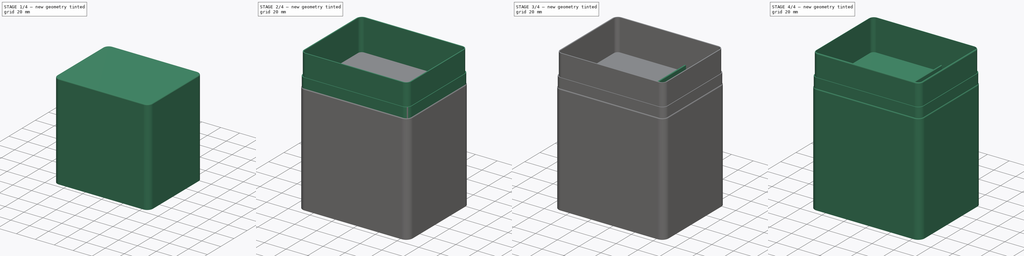
[diagram: build sequence overview — one tinted view per stage of 4, left to right]
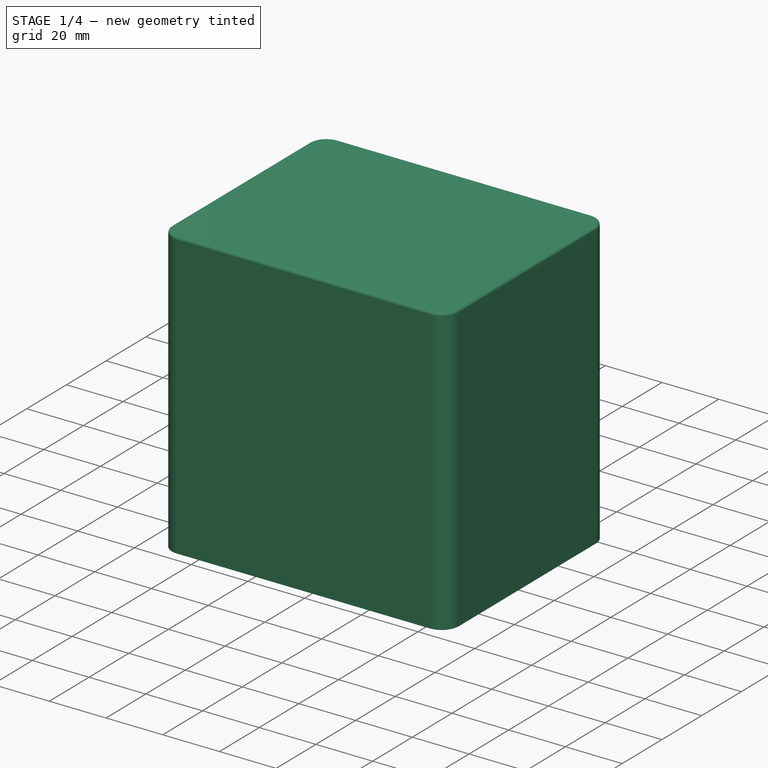
[diagram: stage 1 of 4 — iso view after this stage's code; geometry added in this stage tinted green]
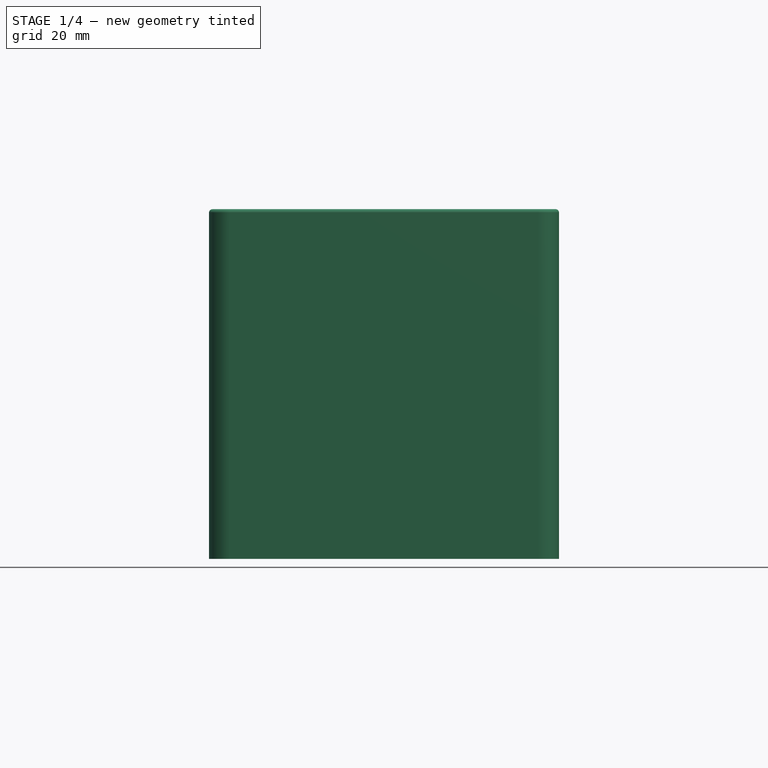
[diagram: stage 1 of 4 — front view after this stage's code; geometry added in this stage tinted green]
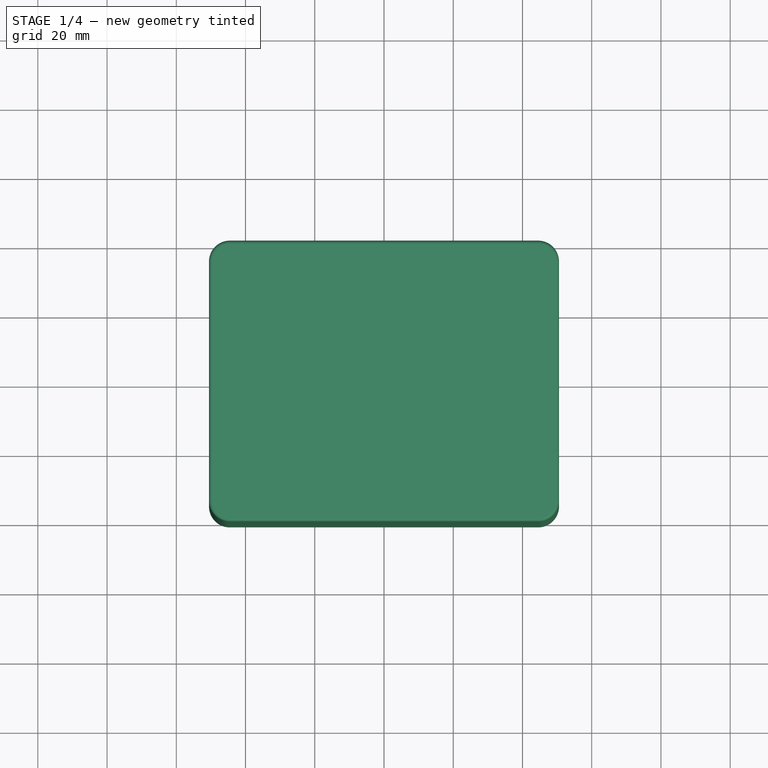
[diagram: stage 1 of 4 — top view after this stage's code; geometry added in this stage tinted green]
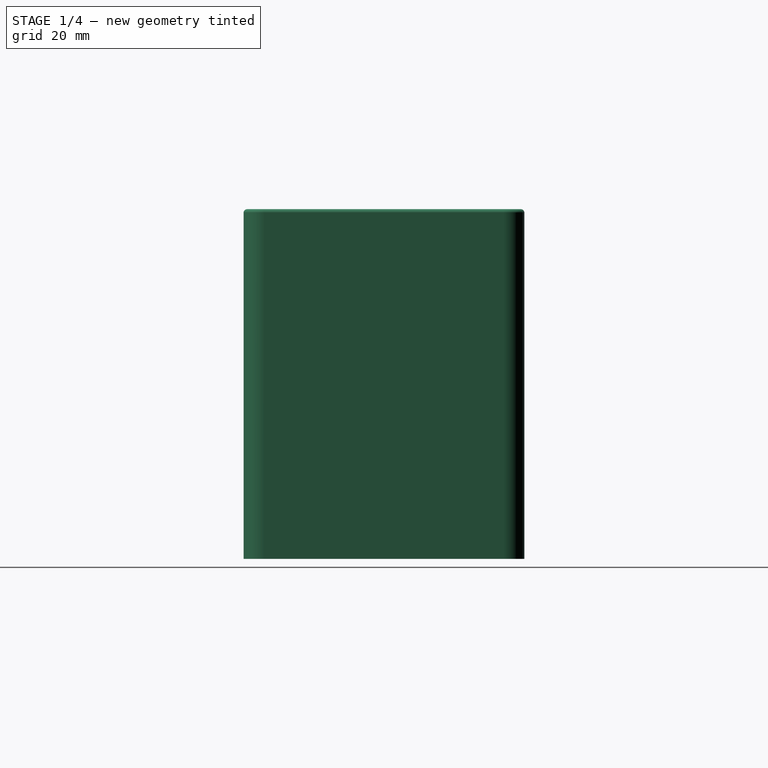
[diagram: stage 1 of 4 — right view after this stage's code; geometry added in this stage tinted green]
FCSTD DOCUMENT  (FreeCAD 0.21R33771 (Git))
Label: 理发套装收纳盒
License: All rights reserved
LicenseURL: http://en.wikipedia.org/wiki/All_rights_reserved
objects: Sketcher::SketchObject×5, PartDesign::Pad×4, PartDesign::Fillet×4, PartDesign::Thickness×2, PartDesign::Body×2, App::Part×2, PartDesign::Pocket×1
note: 29 computed .brp shape members not serialized (recipe doc carries the construction recipe); baked Part::Feature solids carry a one-line shape summary decoded from their .brp

FEATURE [PartDesign::Body] Body  label="实体"
  Group = -> [Sketch,Pad,Thickness,Sketch006,Pocket,Sketch007,Pad004,Sketch008,Pad005,Fillet,Fillet001,Fillet002]
  Origin = -> Origin
  Tip = -> Fillet002
FEATURE [App::Part] Part  label="盒体"
  Group = -> [Body]
  Origin = -> Origin001
FEATURE [Sketcher::SketchObject] Sketch009
  FullyConstrained = true
  MapMode = 5
  Support = -> [XY_Plane003]
  sketch-geometry (12):
    g0: LineSegment StartX=-44.55 StartY=39.55 StartZ=0 EndX=44.55 EndY=39.55 EndZ=0
    g1: LineSegment StartX=49.55 StartY=34.55 StartZ=0 EndX=49.55 EndY=-34.55 EndZ=0
    g2: LineSegment StartX=44.55 StartY=-39.55 StartZ=0 EndX=-44.55 EndY=-39.55 EndZ=0
    g3: LineSegment StartX=-49.55 StartY=-34.55 StartZ=0 EndX=-49.55 EndY=34.55 EndZ=0
    g4: ArcOfCircle CenterX=-44.55 CenterY=-34.55 CenterZ=0 NormalX=0 NormalY=0 NormalZ=1 AngleXU=0 Radius=5 StartAngle=3.14159 EndAngle=4.71239
    g5: GeomPoint X=-49.55 Y=-39.55 Z=0
    g6: ArcOfCircle CenterX=44.55 CenterY=-34.55 CenterZ=0 NormalX=0 NormalY=0 NormalZ=1 AngleXU=0 Radius=5 StartAngle=4.71239 EndAngle=6.28319
    g7: GeomPoint X=49.55 Y=-39.55 Z=0
    g8: ArcOfCircle CenterX=44.55 CenterY=34.55 CenterZ=0 NormalX=0 NormalY=0 NormalZ=1 AngleXU=0 Radius=5 StartAngle=3e-16 EndAngle=1.5708
    g9: GeomPoint X=49.55 Y=39.55 Z=0
    g10: ArcOfCircle CenterX=-44.55 CenterY=34.55 CenterZ=0 NormalX=0 NormalY=0 NormalZ=1 AngleXU=0 Radius=5 StartAngle=1.5708 EndAngle=3.14159
    g11: GeomPoint X=-49.55 Y=39.55 Z=0
  constraints (27):
    c: Horizontal(g0)
    c: Horizontal(g2)
    c: Vertical(g1)
    c: Vertical(g3)
    c: PointOnObject(g5,g2)
    c: PointOnObject(g5,g3)
    c: Tangent(g2,g4) = 1.5708
    c: Tangent(g3,g4) = 1.5708
    c: PointOnObject(g7,g1)
    c: PointOnObject(g7,g2)
    c: Tangent(g1,g6) = 1.5708
    c: Tangent(g2,g6) = 1.5708
    c: PointOnObject(g9,g0)
    c: PointOnObject(g9,g1)
    c: Tangent(g0,g8) = 1.5708
    c: Tangent(g1,g8) = 1.5708
    c: PointOnObject(g11,g0)
    c: PointOnObject(g11,g3)
    c: Tangent(g0,g10) = 1.5708
    c: Tangent(g3,g10) = 1.5708
    c: Radius(g10) = 5
    c: Radius(g8) = 5
    c: Radius(g4) = 5
    c: Radius(g6) = 5
    c: Distance(g9,g11) = 99.1
    c: Distance(g5,g11) = 79.1
    c: Symmetric(g5,g9,g-1)
FEATURE [PartDesign::Pad] Pad006
  Direction = (0,0,1)
  Length = 100
  Length2 = 10
  Profile = -> Sketch009
  ReferenceAxis = -> Sketch009 [N_Axis]
  Type = 0
FEATURE [PartDesign::Thickness] Thickness001
  Base = -> Pad006 [Face9]
  BaseFeature = -> Pad006
  Intersection = false
  Join = 0
  Mode = 0
  SupportTransform = false
  Value = 1
FEATURE [PartDesign::Fillet] Fillet003
  Base = -> Thickness001 [Edge15]
  BaseFeature = -> Thickness001
  Radius = 0.9
  SupportTransform = false
  UseAllEdges = false
FEATURE [PartDesign::Body] Body001  label="实体001"
  Group = -> [Sketch009,Pad006,Thickness001,Fillet003]
  Origin = -> Origin003
  Placement = pos=(0,0,221) rot=(0,0,1;0rad)
  Tip = -> Fillet003
FEATURE [App::Part] Part001  label="盒盖"
  Group = -> [Body001]
  Origin = -> Origin002
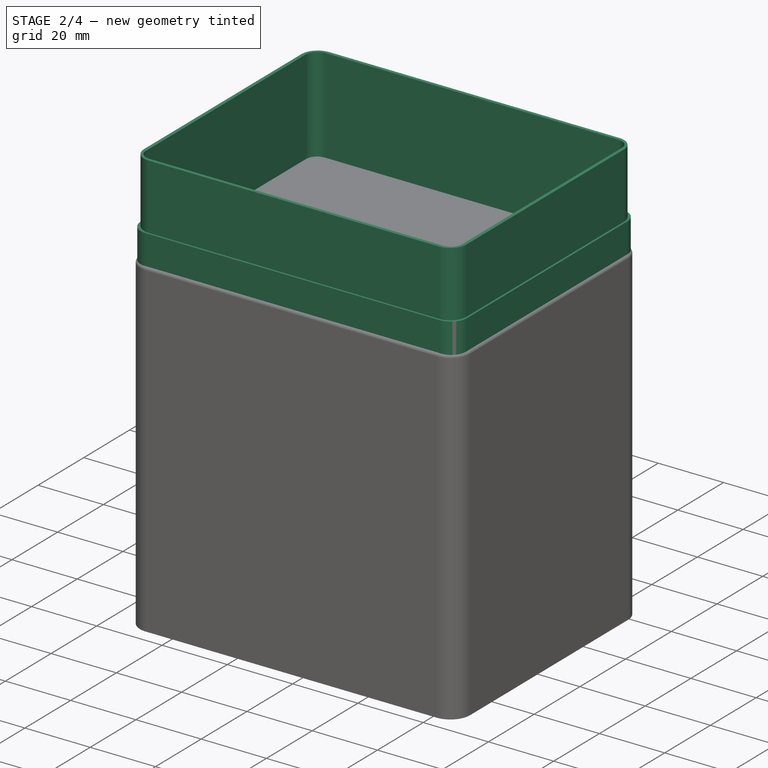
[diagram: stage 2 of 4 — iso view after this stage's code; geometry added in this stage tinted green]
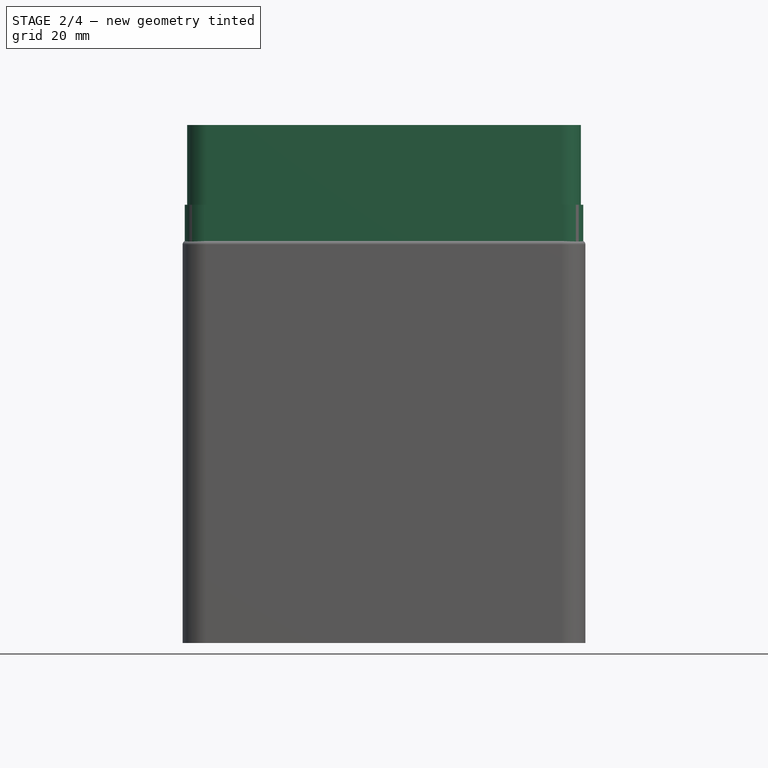
[diagram: stage 2 of 4 — front view after this stage's code; geometry added in this stage tinted green]
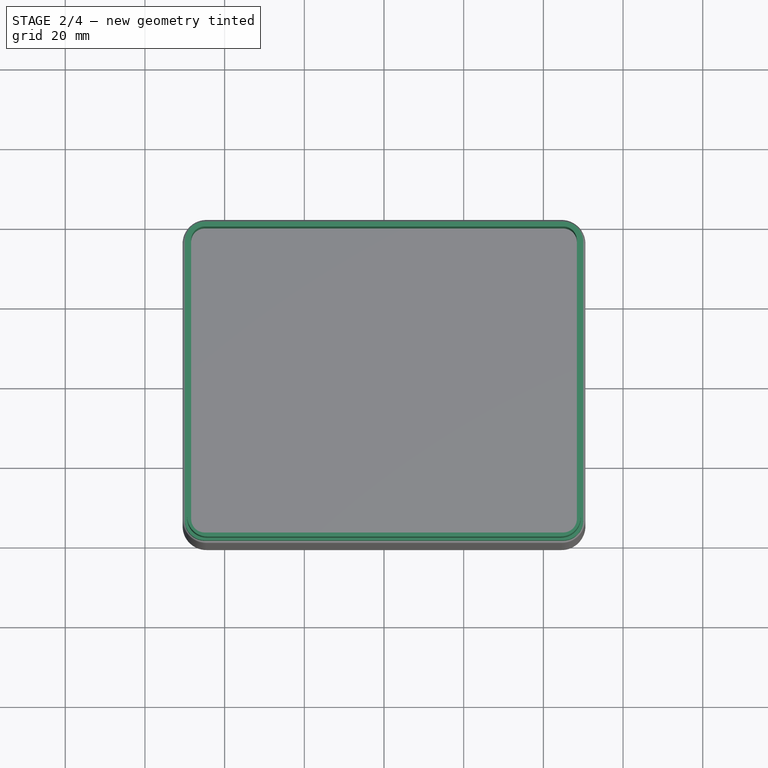
[diagram: stage 2 of 4 — top view after this stage's code; geometry added in this stage tinted green]
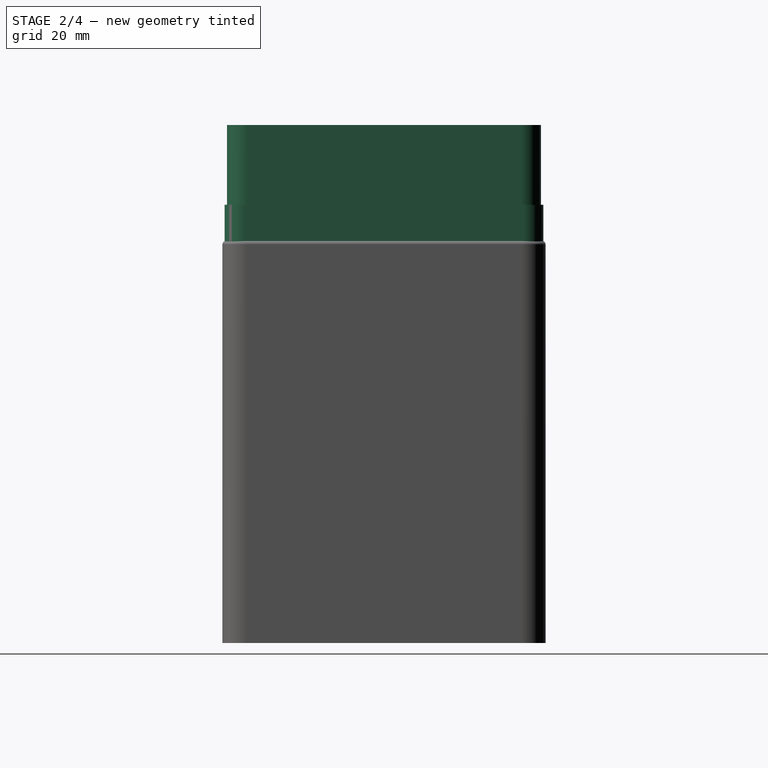
[diagram: stage 2 of 4 — right view after this stage's code; geometry added in this stage tinted green]
FEATURE [Sketcher::SketchObject] Sketch
  FullyConstrained = true
  MapMode = 5
  Support = -> [XY_Plane]
  sketch-geometry (12):
    g0: LineSegment StartX=-45 StartY=40 StartZ=0 EndX=45 EndY=40 EndZ=0
    g1: LineSegment StartX=50 StartY=35 StartZ=0 EndX=50 EndY=-35 EndZ=0
    g2: LineSegment StartX=45 StartY=-40 StartZ=0 EndX=-45 EndY=-40 EndZ=0
    g3: LineSegment StartX=-50 StartY=-35 StartZ=0 EndX=-50 EndY=35 EndZ=0
    g4: ArcOfCircle CenterX=-45 CenterY=-35 CenterZ=0 NormalX=0 NormalY=0 NormalZ=1 AngleXU=0 Radius=5 StartAngle=3.14159 EndAngle=4.71239
    g5: GeomPoint X=-50 Y=-40 Z=0
    g6: ArcOfCircle CenterX=-45 CenterY=35 CenterZ=0 NormalX=0 NormalY=0 NormalZ=1 AngleXU=0 Radius=5 StartAngle=1.5708 EndAngle=3.14159
    g7: GeomPoint X=-50 Y=40 Z=0
    g8: ArcOfCircle CenterX=45 CenterY=35 CenterZ=0 NormalX=0 NormalY=0 NormalZ=1 AngleXU=0 Radius=5 StartAngle=0 EndAngle=1.5708
    g9: GeomPoint X=50 Y=40 Z=0
    g10: ArcOfCircle CenterX=45 CenterY=-35 CenterZ=0 NormalX=0 NormalY=0 NormalZ=1 AngleXU=0 Radius=5 StartAngle=4.71239 EndAngle=6.28319
    g11: GeomPoint X=50 Y=-40 Z=0
  constraints (27):
    c: Horizontal(g0)
    c: Horizontal(g2)
    c: Vertical(g1)
    c: Vertical(g3)
    c: PointOnObject(g5,g2)
    c: PointOnObject(g5,g3)
    c: Tangent(g2,g4) = 1.5708
    c: Tangent(g3,g4) = 1.5708
    c: PointOnObject(g7,g0)
    c: PointOnObject(g7,g3)
    c: Tangent(g0,g6) = 1.5708
    c: Tangent(g3,g6) = 1.5708
    c: PointOnObject(g9,g0)
    c: PointOnObject(g9,g1)
    c: Tangent(g0,g8) = 1.5708
    c: Tangent(g1,g8) = 1.5708
    c: PointOnObject(g11,g1)
    c: PointOnObject(g11,g2)
    c: Tangent(g1,g10) = 1.5708
    c: Tangent(g2,g10) = 1.5708
    c: Radius(g10) = 5
    c: Radius(g4) = 5
    c: Radius(g6) = 5
    c: Radius(g8) = 5
    c: Distance(g7,g9) = 100
    c: Distance(g5,g7) = 80
    c: Symmetric(g5,g9,g-1)
FEATURE [PartDesign::Pad] Pad
  Direction = (0,0,1)
  Length = 130
  Length2 = 10
  Profile = -> Sketch
  ReferenceAxis = -> Sketch [N_Axis]
  Type = 0
FEATURE [PartDesign::Thickness] Thickness
  Base = -> Pad [Face10]
  BaseFeature = -> Pad
  Intersection = false
  Join = 0
  Mode = 0
  Reversed = true
  SupportTransform = false
  Value = 1.6
FEATURE [Sketcher::SketchObject] Sketch006
  ExternalGeometry = -> [Thickness]
  FullyConstrained = true
  MapMode = 5
  Placement = pos=(0,0,130) rot=(0,0,1;0rad)
  Support = -> [Thickness]
  sketch-geometry (24):
    g0: LineSegment StartX=-44.4 StartY=39.4 StartZ=0 EndX=44.4 EndY=39.4 EndZ=0
    g1: LineSegment StartX=49.4 StartY=34.4 StartZ=0 EndX=49.4 EndY=-34.4 EndZ=0
    g2: LineSegment StartX=44.4 StartY=-39.4 StartZ=0 EndX=-44.4 EndY=-39.4 EndZ=0
    g3: LineSegment StartX=-49.4 StartY=-34.4 StartZ=0 EndX=-49.4 EndY=34.4 EndZ=0
    g4: ArcOfCircle CenterX=-44.4 CenterY=-34.4 CenterZ=0 NormalX=0 NormalY=0 NormalZ=1 AngleXU=0 Radius=5 StartAngle=3.14159 EndAngle=4.71239
    g5: GeomPoint X=-49.4 Y=-39.4 Z=0
    g6: ArcOfCircle CenterX=-44.4 CenterY=34.4 CenterZ=0 NormalX=0 NormalY=0 NormalZ=1 AngleXU=0 Radius=5 StartAngle=1.5708 EndAngle=3.14159
    g7: GeomPoint X=-49.4 Y=39.4 Z=0
    g8: ArcOfCircle CenterX=44.4 CenterY=34.4 CenterZ=0 NormalX=0 NormalY=0 NormalZ=1 AngleXU=0 Radius=5 StartAngle=-9e-16 EndAngle=1.5708
    g9: GeomPoint X=49.4 Y=39.4 Z=0
    g10: ArcOfCircle CenterX=44.4 CenterY=-34.4 CenterZ=0 NormalX=0 NormalY=0 NormalZ=1 AngleXU=0 Radius=5 StartAngle=4.71239 EndAngle=6.28319
    g11: GeomPoint X=49.4 Y=-39.4 Z=0
    g12: LineSegment StartX=-45 StartY=40 StartZ=0 EndX=45 EndY=40 EndZ=0
    g13: LineSegment StartX=50 StartY=35 StartZ=0 EndX=50 EndY=-35 EndZ=0
    g14: LineSegment StartX=45 StartY=-40 StartZ=0 EndX=-45 EndY=-40 EndZ=0
    g15: LineSegment StartX=-50 StartY=-35 StartZ=0 EndX=-50 EndY=35 EndZ=0
    g16: ArcOfCircle CenterX=-45 CenterY=-35 CenterZ=0 NormalX=0 NormalY=0 NormalZ=1 AngleXU=0 Radius=5 StartAngle=3.14159 EndAngle=4.71239
    g17: GeomPoint X=-50 Y=-40 Z=0
    g18: ArcOfCircle CenterX=-45 CenterY=35 CenterZ=0 NormalX=0 NormalY=0 NormalZ=1 AngleXU=0 Radius=5 StartAngle=1.5708 EndAngle=3.14159
    g19: GeomPoint X=-50 Y=40 Z=0
    g20: ArcOfCircle CenterX=45 CenterY=35 CenterZ=0 NormalX=0 NormalY=0 NormalZ=1 AngleXU=0 Radius=5 StartAngle=0 EndAngle=1.5708
    g21: GeomPoint X=50 Y=40 Z=0
    g22: ArcOfCircle CenterX=45 CenterY=-35 CenterZ=0 NormalX=0 NormalY=0 NormalZ=1 AngleXU=0 Radius=5 StartAngle=4.71239 EndAngle=6.28319
    g23: GeomPoint X=50 Y=-40 Z=0
  constraints (54):
    c: Horizontal(g0)
    c: Horizontal(g2)
    c: Vertical(g1)
    c: Vertical(g3)
    c: PointOnObject(g5,g2)
    c: PointOnObject(g5,g3)
    c: Tangent(g2,g4) = 1.5708
    c: Tangent(g3,g4) = 1.5708
    c: PointOnObject(g7,g0)
    c: PointOnObject(g7,g3)
    c: Tangent(g0,g6) = 1.5708
    c: Tangent(g3,g6) = 1.5708
    c: PointOnObject(g9,g0)
    c: PointOnObject(g9,g1)
    c: Tangent(g0,g8) = 1.5708
    c: Tangent(g1,g8) = 1.5708
    c: PointOnObject(g11,g1)
    c: PointOnObject(g11,g2)
    c: Tangent(g1,g10) = 1.5708
    c: Tangent(g2,g10) = 1.5708
    c: Radius(g6) = 5
    c: Radius(g4) = 5
    c: Radius(g10) = 5
    c: Radius(g8) = 5
    c: Horizontal(g12)
    c: Horizontal(g14)
    c: Vertical(g13)
    c: Vertical(g15)
    c: Distance(g7,g-3) = 0.6
    c: Distance(g0,g-4) = 0.6
    c: Distance(g1,g-6) = 0.6
    c: Distance(g2,g-5) = 0.6
    c: PointOnObject(g-5,g14)
    c: PointOnObject(g17,g14)
    c: PointOnObject(g17,g15)
    c: Tangent(g14,g16) = 1.5708
    c: Tangent(g15,g16) = 1.5708
    c: PointOnObject(g19,g12)
    c: PointOnObject(g19,g15)
    c: Tangent(g12,g18) = 1.5708
    c: Tangent(g15,g18) = 1.5708
    c: PointOnObject(g21,g12)
    c: PointOnObject(g21,g13)
    c: Tangent(g12,g20) = 1.5708
    c: Tangent(g13,g20) = 1.5708
    c: PointOnObject(g23,g13)
    c: PointOnObject(g23,g14)
    c: Tangent(g13,g22) = 1.5708
    c: Tangent(g14,g22) = 1.5708
    c: Coincident(g15,g-3)
    c: PointOnObject(g12,g-4)
    c: Coincident(g13,g-6)
    c: Radius(g16) = 5
    c: Radius(g22) = 5
FEATURE [PartDesign::Pocket] Pocket
  BaseFeature = -> Thickness
  Direction = (0,0,-1)
  Length = 20
  Length2 = 5
  Profile = -> Sketch006
  ReferenceAxis = -> Sketch006 [N_Axis]
  Type = 0
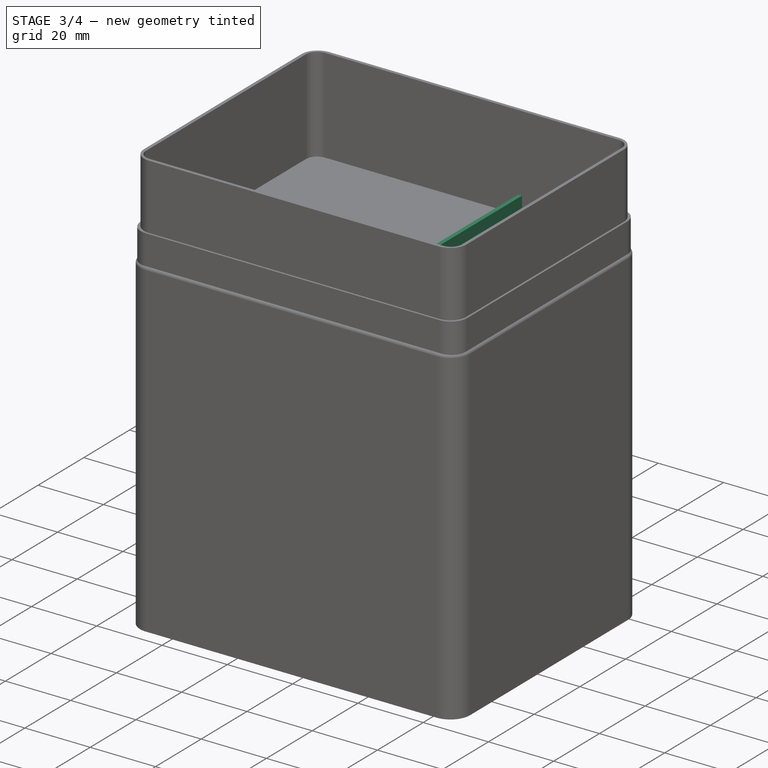
[diagram: stage 3 of 4 — iso view after this stage's code; geometry added in this stage tinted green]
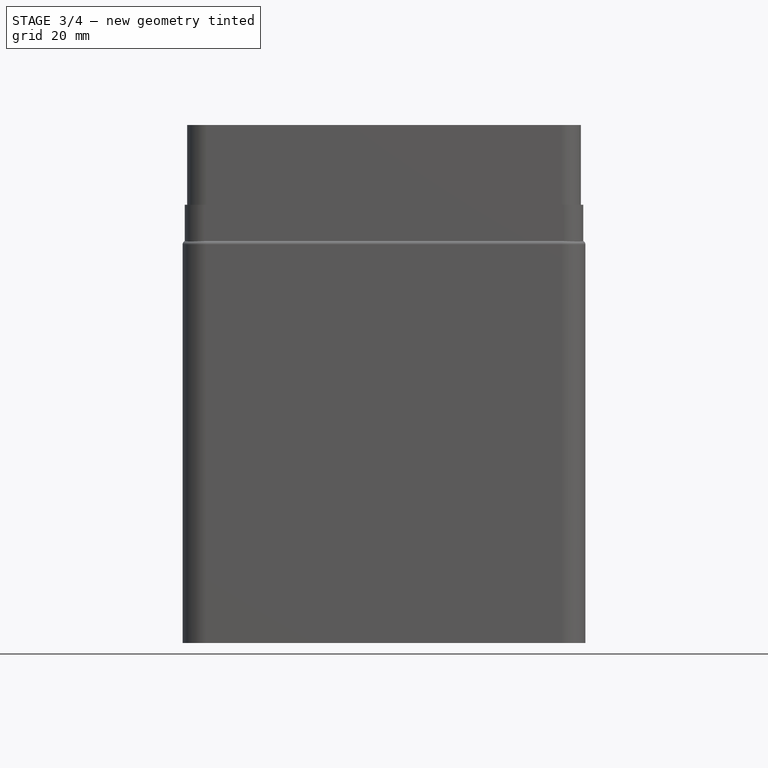
[diagram: stage 3 of 4 — front view after this stage's code; geometry added in this stage tinted green]
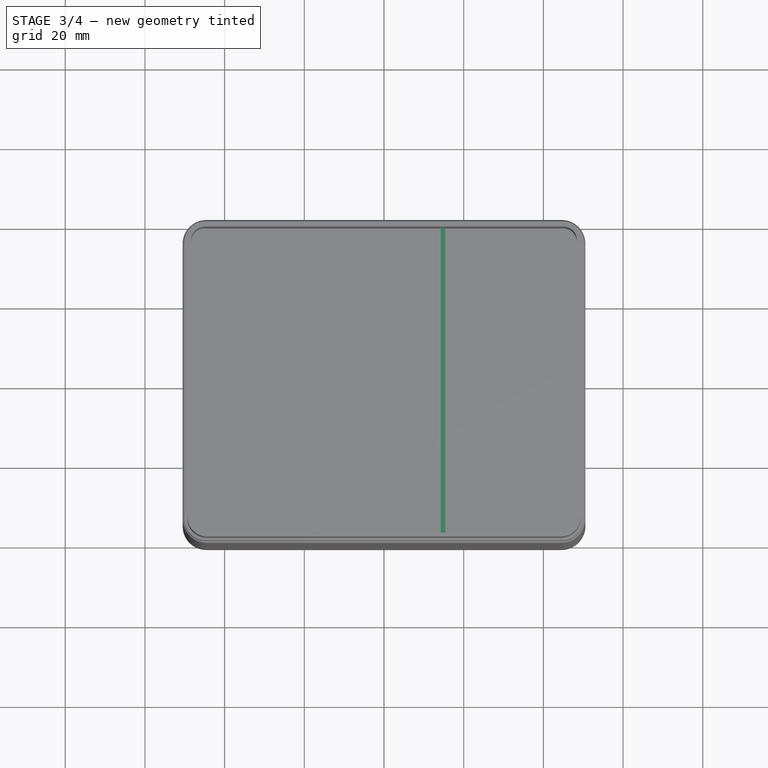
[diagram: stage 3 of 4 — top view after this stage's code; geometry added in this stage tinted green]
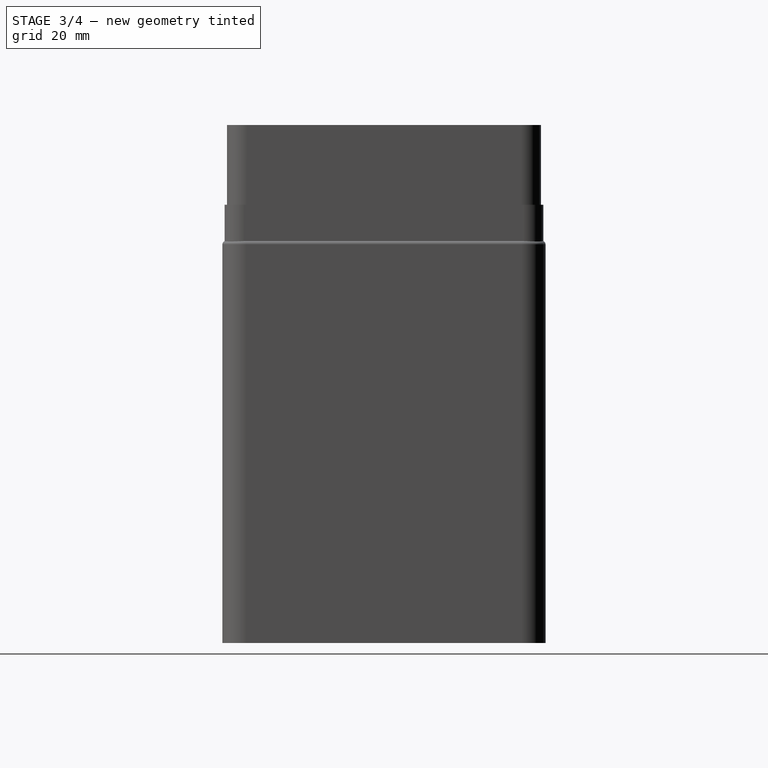
[diagram: stage 3 of 4 — right view after this stage's code; geometry added in this stage tinted green]
FEATURE [Sketcher::SketchObject] Sketch007
  ExternalGeometry = -> [Pocket]
  FullyConstrained = true
  MapMode = 5
  Placement = pos=(0,0,1.6) rot=(0,0,1;0rad)
  Support = -> [Pocket]
  sketch-geometry (4):
    g0: LineSegment StartX=14.2 StartY=38.4 StartZ=0 EndX=15.4 EndY=38.4 EndZ=0
    g1: LineSegment StartX=15.4 StartY=38.4 StartZ=0 EndX=15.4 EndY=-38.4 EndZ=0
    g2: LineSegment StartX=15.4 StartY=-38.4 StartZ=0 EndX=14.2 EndY=-38.4 EndZ=0
    g3: LineSegment StartX=14.2 StartY=-38.4 StartZ=0 EndX=14.2 EndY=38.4 EndZ=0
  constraints (12):
    c: Coincident(g0,g1)
    c: Coincident(g1,g2)
    c: Coincident(g2,g3)
    c: Coincident(g3,g0)
    c: Horizontal(g0)
    c: Horizontal(g2)
    c: Vertical(g1)
    c: Vertical(g3)
    c: DistanceX(g2,g2) = 1.2
    c: PointOnObject(g2,g-3)
    c: PointOnObject(g0,g-4)
    c: Distance(g-5,g1) = 33
FEATURE [PartDesign::Pad] Pad004
  BaseFeature = -> Pocket
  Direction = (0,0,1)
  Length = 105
  Length2 = 10
  Profile = -> Sketch007
  ReferenceAxis = -> Sketch007 [N_Axis]
  Type = 0
FEATURE [Sketcher::SketchObject] Sketch008
  ExternalGeometry = -> [Pad004]
  FullyConstrained = true
  MapMode = 5
  Placement = pos=(0,0,1.6) rot=(0,0,1;0rad)
  Support = -> [Pad004]
  sketch-geometry (4):
    g0: LineSegment StartX=-48.4 StartY=-14.2 StartZ=0 EndX=14.2 EndY=-14.2 EndZ=0
    g1: LineSegment StartX=14.2 StartY=-14.2 StartZ=0 EndX=14.2 EndY=-15.4 EndZ=0
    g2: LineSegment StartX=14.2 StartY=-15.4 StartZ=0 EndX=-48.4 EndY=-15.4 EndZ=0
    g3: LineSegment StartX=-48.4 StartY=-15.4 StartZ=0 EndX=-48.4 EndY=-14.2 EndZ=0
  constraints (12):
    c: Coincident(g0,g1)
    c: Coincident(g1,g2)
    c: Coincident(g2,g3)
    c: Coincident(g3,g0)
    c: Horizontal(g0)
    c: Horizontal(g2)
    c: Vertical(g1)
    c: Vertical(g3)
    c: DistanceY(g3,g3) = 1.2
    c: PointOnObject(g2,g-3)
    c: PointOnObject(g1,g-4)
    c: Distance(g2,g-5) = 23
FEATURE [PartDesign::Pad] Pad005
  BaseFeature = -> Pad004
  Direction = (0,0,1)
  Length = 50
  Length2 = 10
  Profile = -> Sketch008
  ReferenceAxis = -> Sketch008 [N_Axis]
  Type = 0
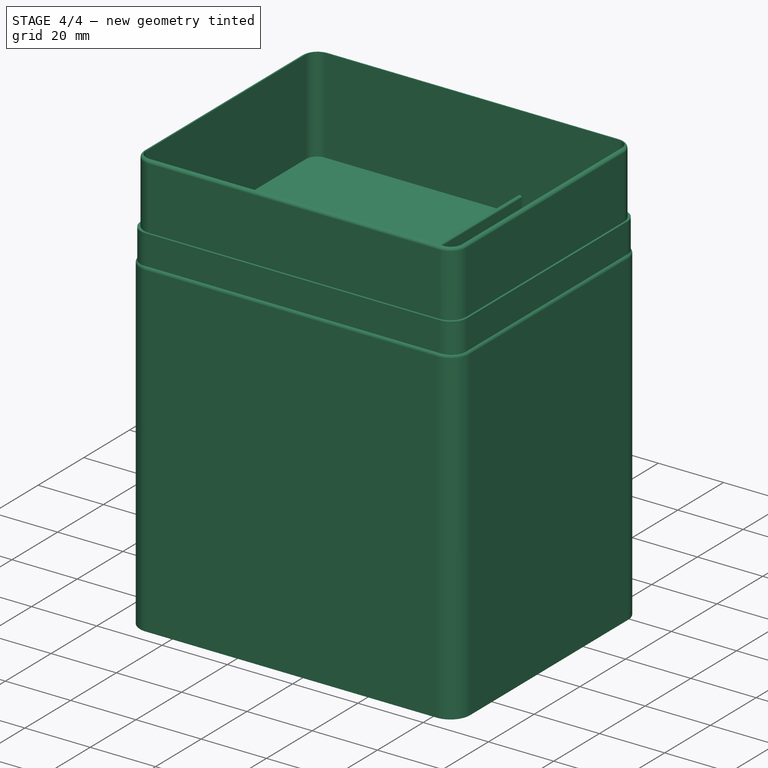
[diagram: stage 4 of 4 — iso view after this stage's code; geometry added in this stage tinted green]
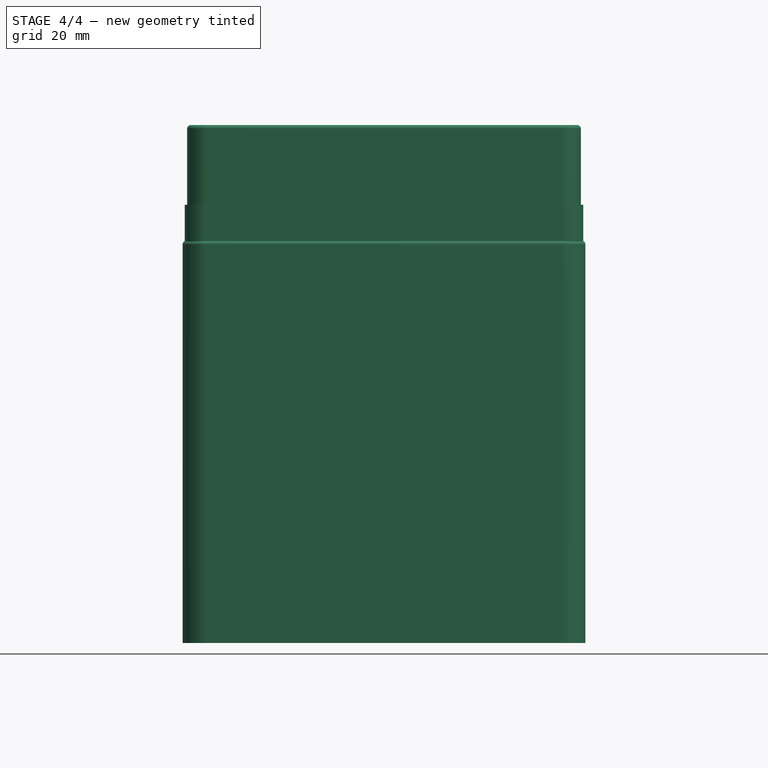
[diagram: stage 4 of 4 — front view after this stage's code; geometry added in this stage tinted green]
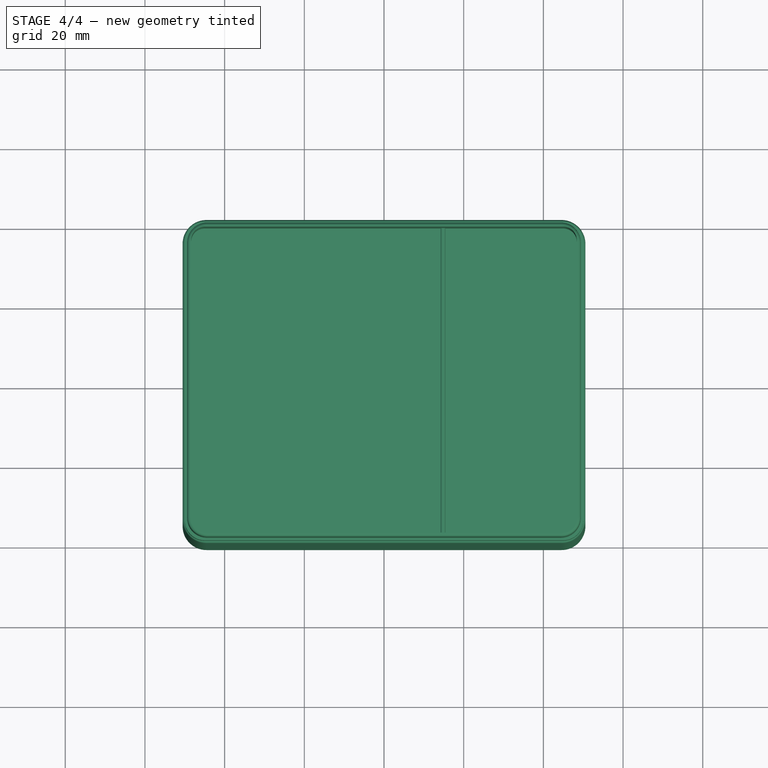
[diagram: stage 4 of 4 — top view after this stage's code; geometry added in this stage tinted green]
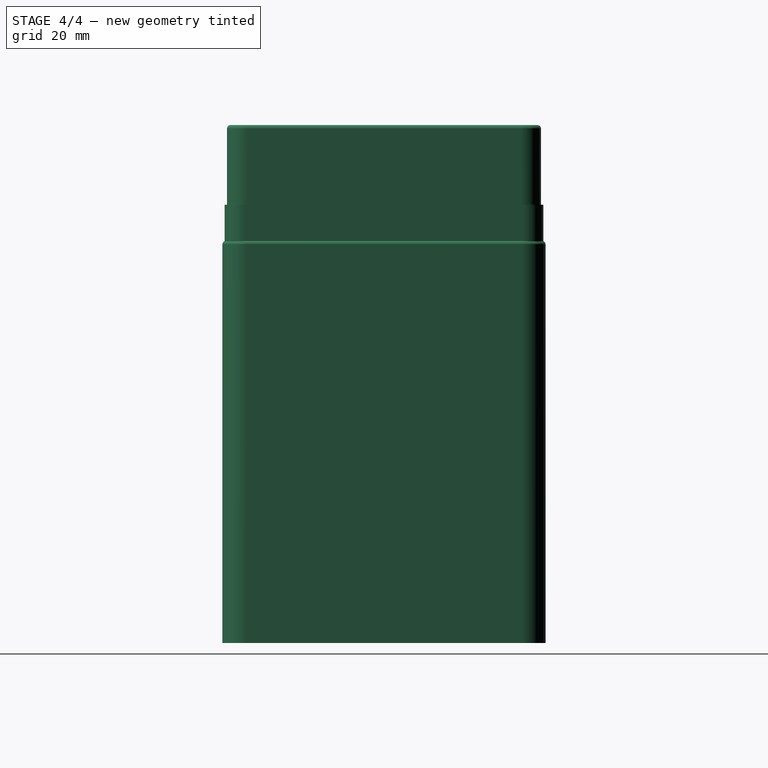
[diagram: stage 4 of 4 — right view after this stage's code; geometry added in this stage tinted green]
FEATURE [PartDesign::Fillet] Fillet
  Base = -> Pad005 [Edge87,Edge86,Edge95,Edge94]
  BaseFeature = -> Pad005
  Radius = 0.5
  SupportTransform = false
  UseAllEdges = false
FEATURE [PartDesign::Fillet] Fillet001
  Base = -> Fillet [Edge28]
  BaseFeature = -> Fillet
  Radius = 0.9
  SupportTransform = false
  UseAllEdges = false
FEATURE [PartDesign::Fillet] Fillet002
  Base = -> Fillet001 [Edge135]
  BaseFeature = -> Fillet001
  Radius = 1
  SupportTransform = false
  UseAllEdges = false
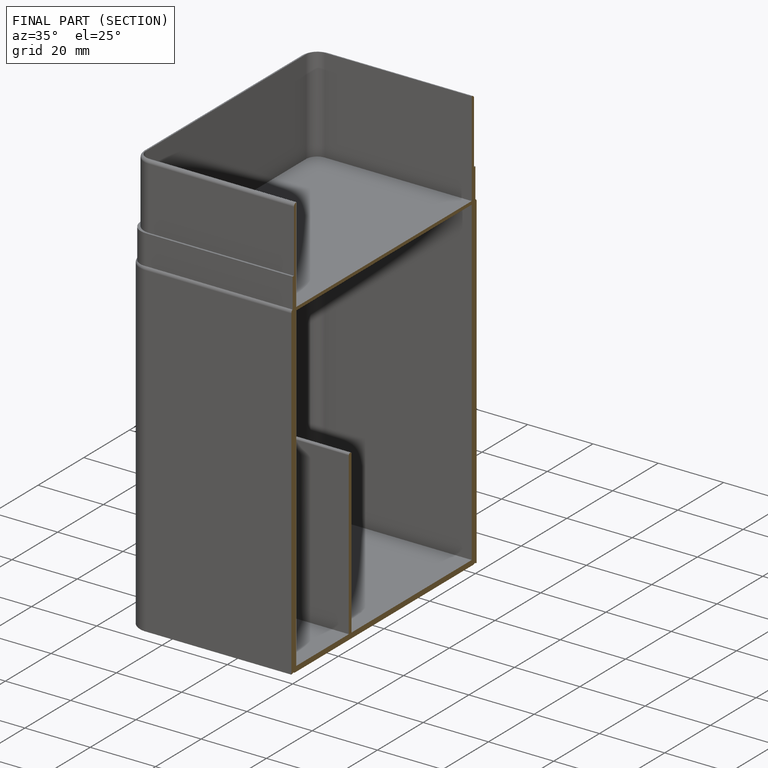
[diagram: finished part — half-section view (interior)]
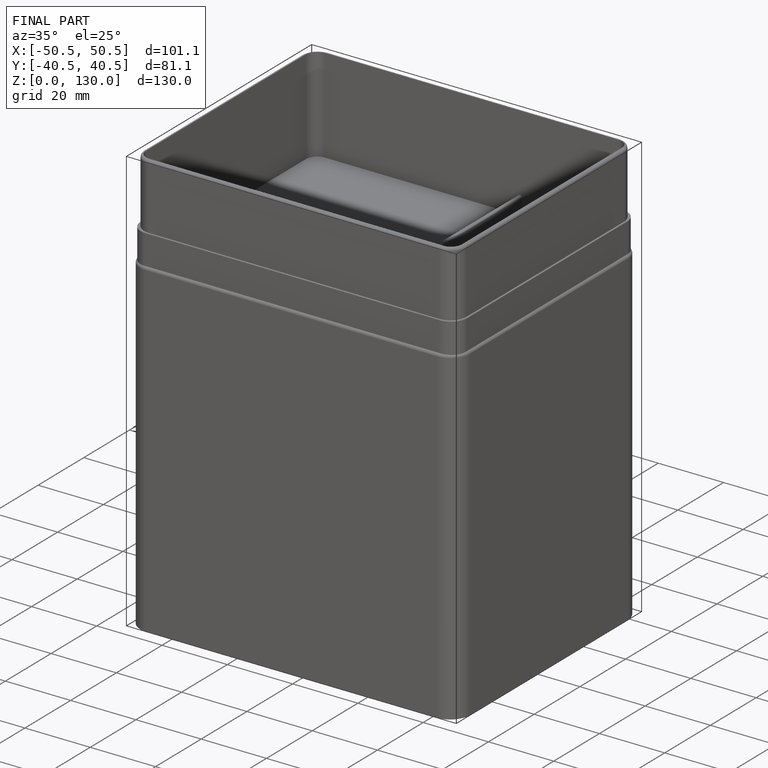
[diagram: finished part — iso view with bounding-box wireframe]
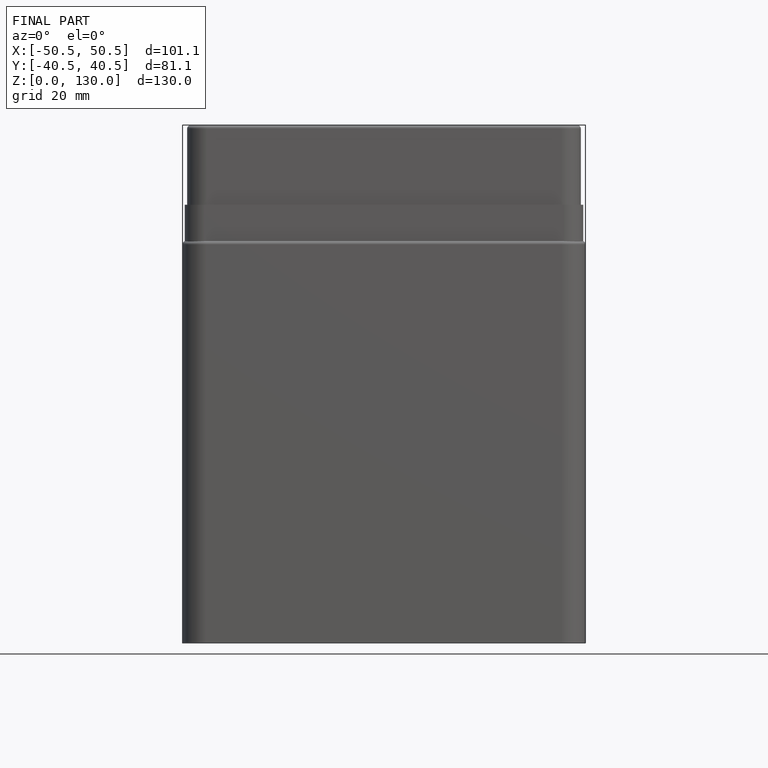
[diagram: finished part — front view with bounding-box wireframe]
